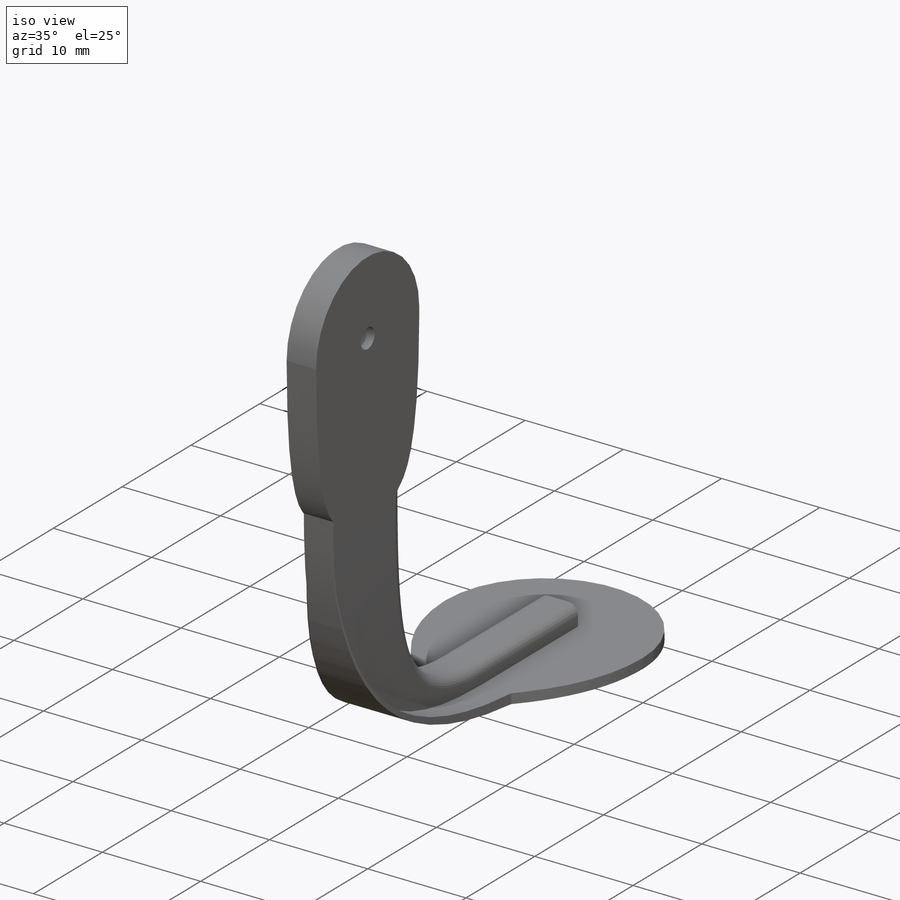
[diagram: iso view]
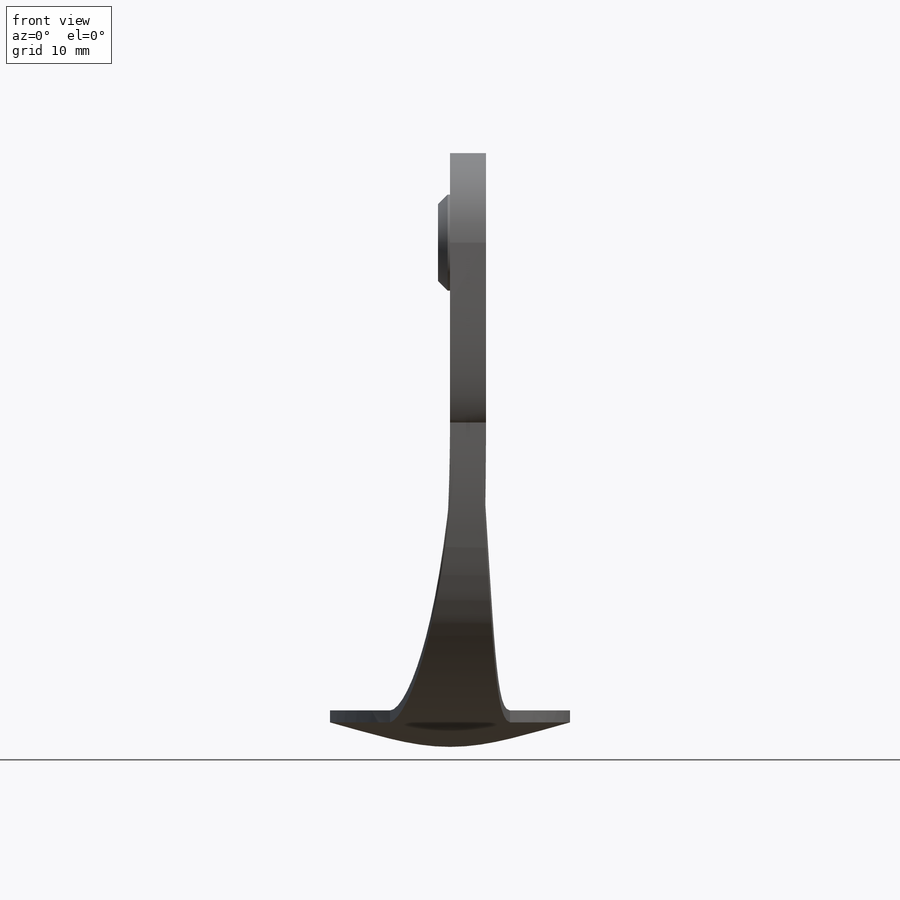
[diagram: front view]
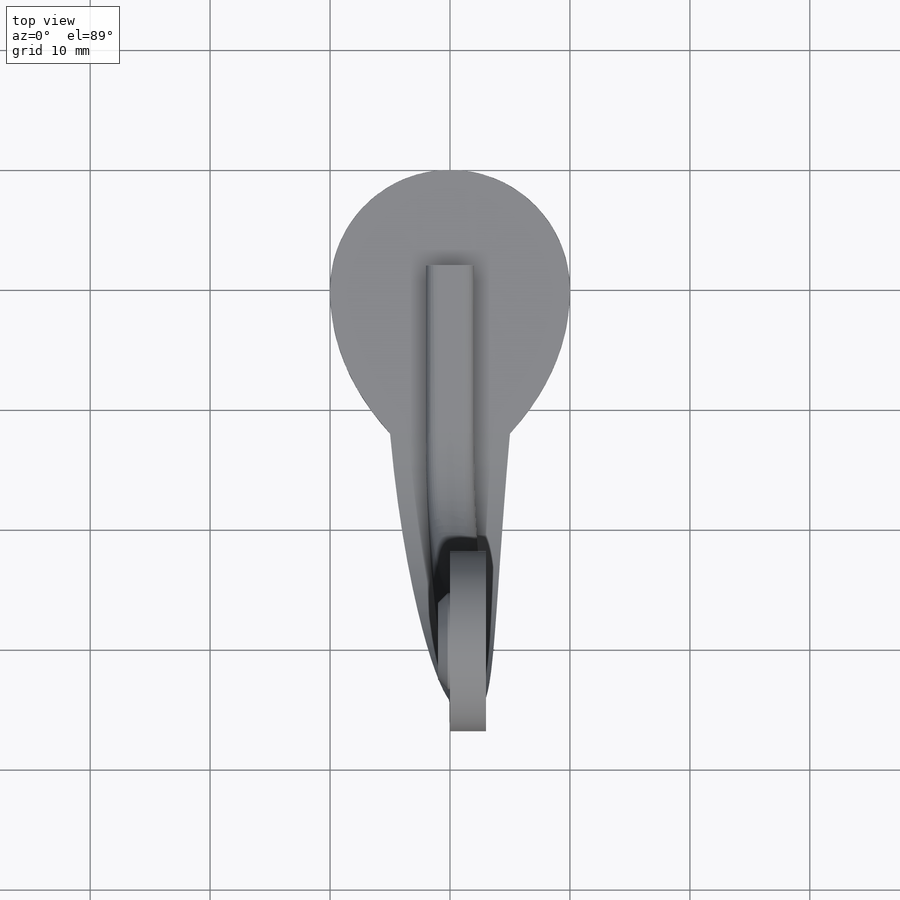
[diagram: top view]
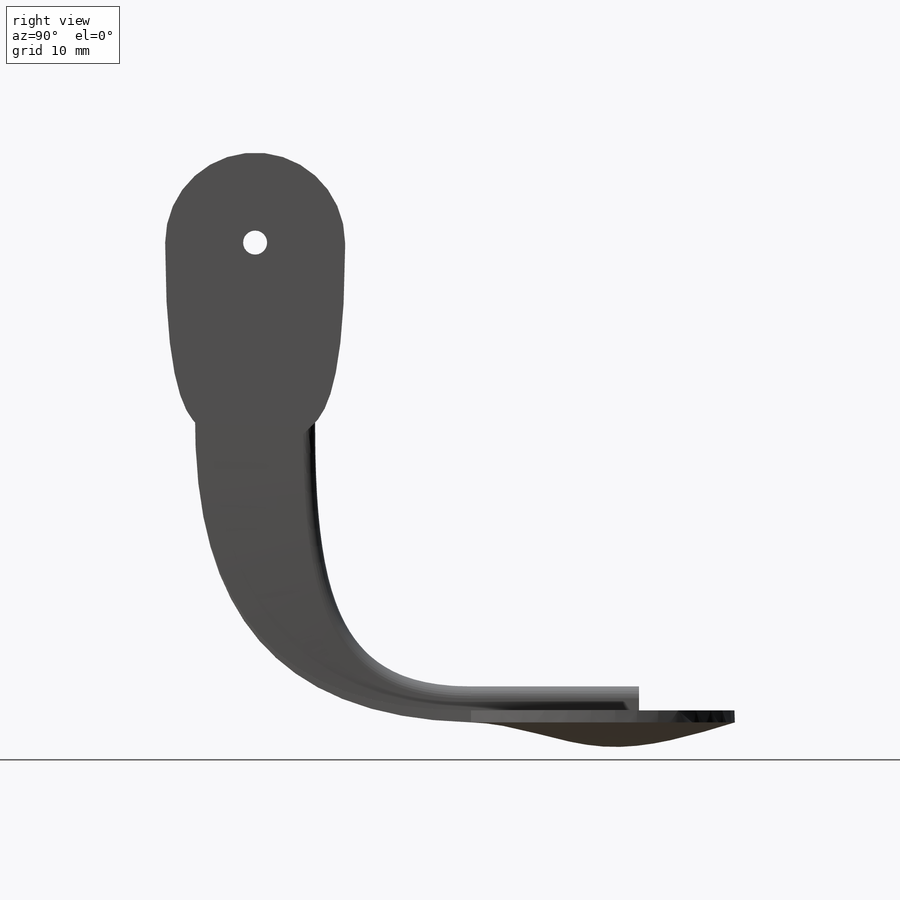
[diagram: right view]
SOLIDWORKS PART (.sldprt)
format: sldprt  version: not decoded by parser v0  size: 631,808 bytes
history: native  units: mm
features: sketch x6, extrude x4, plane x3, cut_extrude x2, chamfer x2, fillet x2, material x1, dome x1 (+8 scaffold rows collapsed)
feature tree (29):
  scaffold x8  (default folders/planes/origin — collapsed)
  material  "Matériau <non spécifié>"
  plane  "Plan de face"
  plane  "Plan de dessus"
  plane  "Plan de droite"
  sketch  "Esquisse1"  dims[D1=15.0mm D2=10.0mm D3=15.0mm]
  extrude  "Boss.-Extru.1"  Depth=3mm
  sketch  "Esquisse8"  dims[D1=8.0mm]
  extrude  "Boss.-Extru.7"  Depth=1mm
  sketch  "Esquisse3D1"  dims[c1.D3=~34.966135mm c1.D5=20.0mm c1.D2=~23.970006mm c2.D3=20.0mm c2.D2=~45.592646mm c3.D3=20.0mm c3.D2=~28.080085mm c3.D5=20.0mm c4.D3=40.0mm c4.D1=40.0mm c4.D4=~12.486052mm c5.D1=50.0mm c5.D5=~15.337553mm c5.D6=8.0mm c6.D6=~19.369113mm c6.D7=12.0mm c6.D1=30.0mm c6.D2=40.0mm c6.D3=10.0mm c6.D4=12.0mm c7.D2=20.0mm c7.D5=20.0mm c8.D5=40.0mm c8.D2=20.0mm]
  extrude  "Boss.-Extru.5"  Depth=1mm
  sketch  "Esquisse7"  dims[D1=14.0mm D2=4.0mm]
  extrude  "Boss.-Extru.6"  Depth=2mm
  sketch  "Esquisse9"  dims[D1=4.9mm]
  cut_extrude  "Enlèv. mat.-Extru.3"  Depth=3.2mm
  sketch  "Esquisse10"  dims[D1=2.0mm]
  cut_extrude  "Enlèv. mat.-Extru.4"  [1 undecoded]
  chamfer  "Chanfrein2"  Distance=0.8mm Angle=45deg
  chamfer  "Esquisse3D4"  [1 undecoded]
  fillet  "Congé5"  Radius=1mm
  fillet  "Congé6"  Radius=1mm
  dome  "Dôme2"
decode coverage: 14 of 17 modeling features carry decoded parameters
note: ~ marks probable driven/reference dimensions
note: 2 parameter values undecoded
note: suppression state not decoded; provenance and decode notes live in map.json
